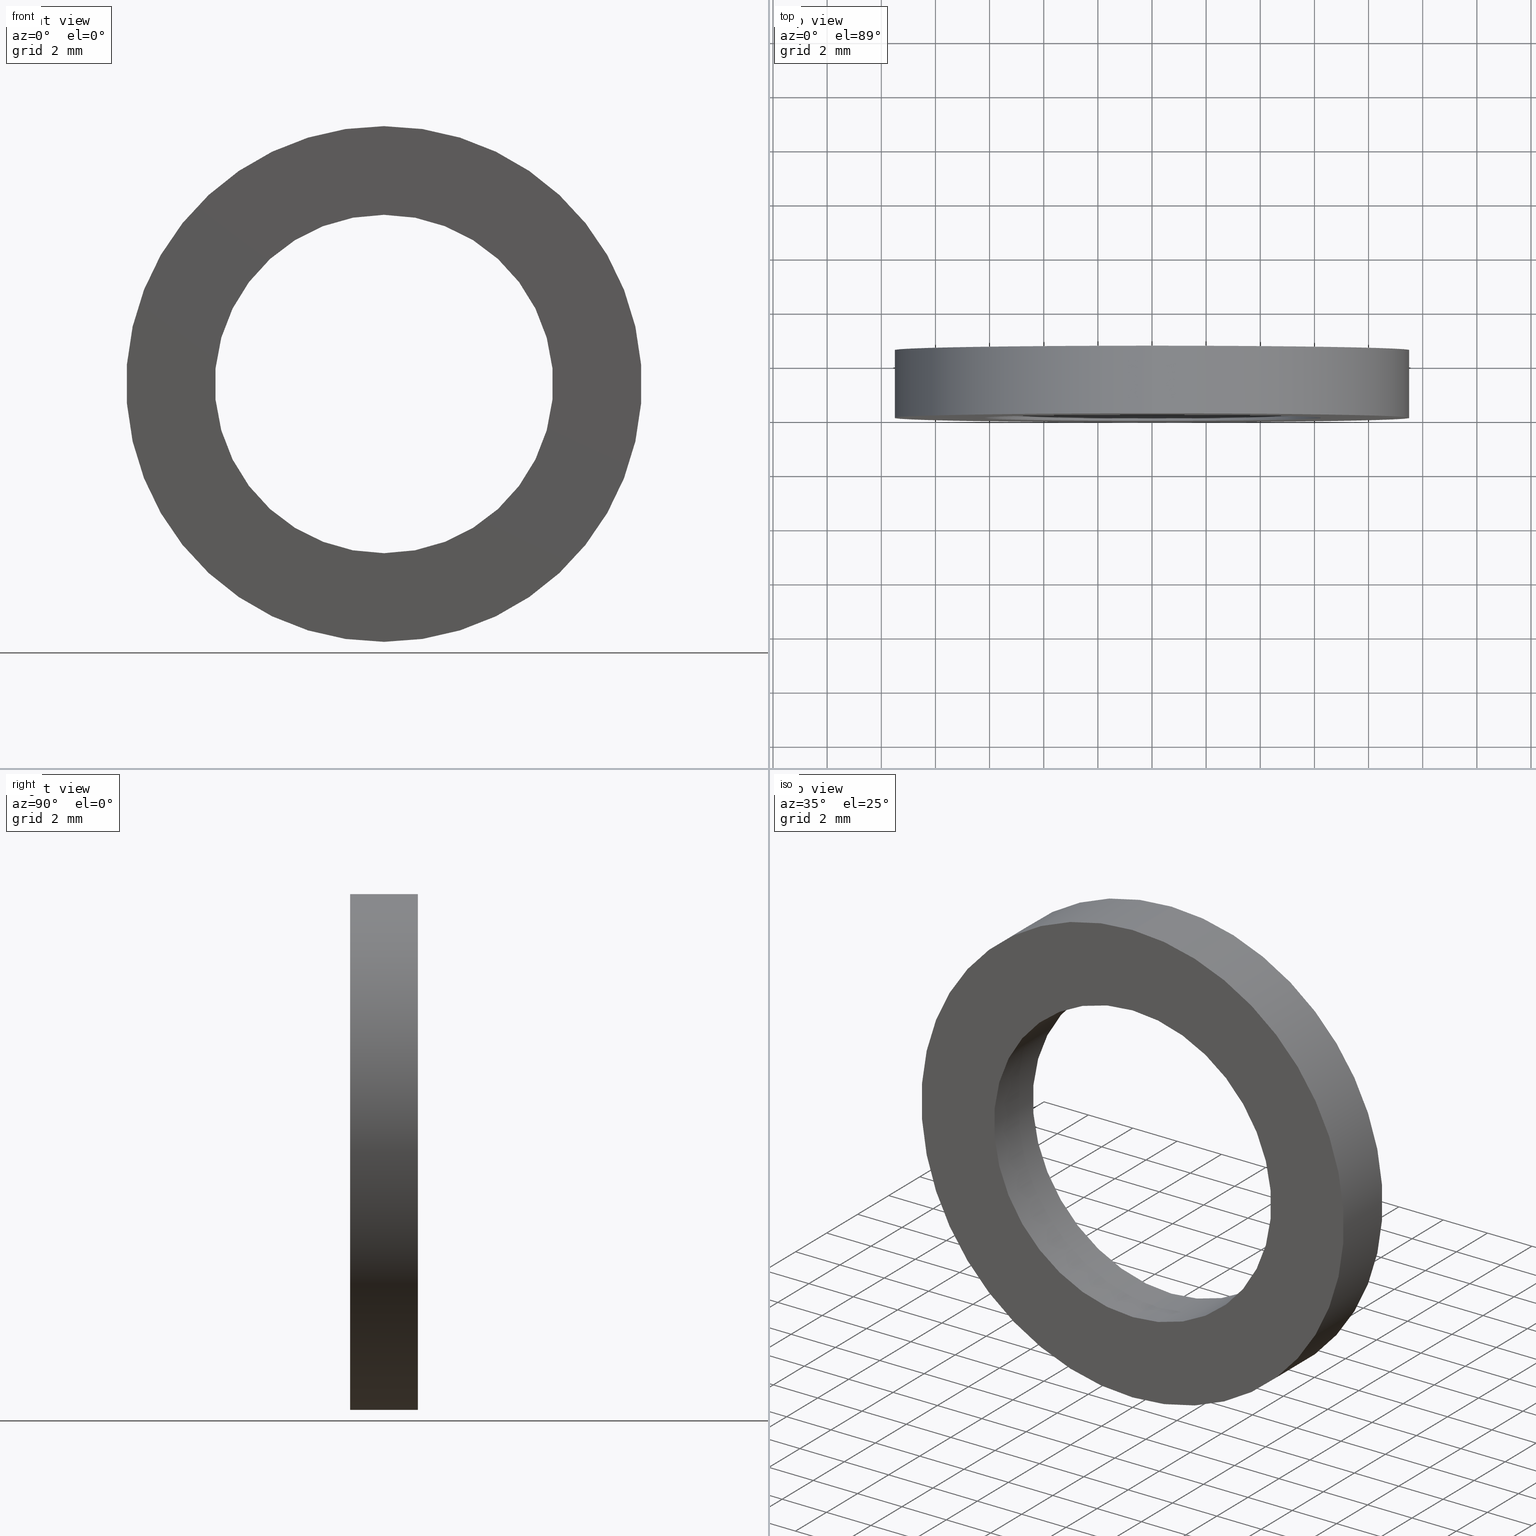
[diagram: canonical four-view strip — front | top / right | iso, engineering-drawing reading convention]
A machine part, canonical four-view strip (front | top / right | iso — engineering-drawing reading convention). The complete STEP part file that produces these views, byte-faithful:
ISO-10303-21;
HEADER;
FILE_DESCRIPTION (( 'STEP AP214' ),
    '1' );
FILE_NAME ('511006.STEP',
    '2019-09-12T08:47:17',
    ( '' ),
    ( '' ),
    'SwSTEP 2.0',
    'SolidWorks 2016',
    '' );
FILE_SCHEMA (( 'AUTOMOTIVE_DESIGN' ));
ENDSEC;

DATA;
#1 = DIRECTION ( 'NONE',  ( 0.0000000000000000000, 0.0000000000000000000, 1.000000000000000000 ) ) ;
#2 = CARTESIAN_POINT ( 'NONE',  ( 0.0000000000000000000, 77.14414226561778800, 0.0000000000000000000 ) ) ;
#3 = UNCERTAINTY_MEASURE_WITH_UNIT (LENGTH_MEASURE( 1.000000000000000100E-005 ), #81, 'distance_accuracy_value', 'NONE');
#4 = APPLICATION_PROTOCOL_DEFINITION ( 'draft international standard', 'automotive_design', 1998, #153 ) ;
#5 = DIRECTION ( 'NONE',  ( 1.000000000000000000, 0.0000000000000000000, 0.0000000000000000000 ) ) ;
#6 = DIRECTION ( 'NONE',  ( -0.0000000000000000000, 1.000000000000000000, -0.0000000000000000000 ) ) ;
#7 = CARTESIAN_POINT ( 'NONE',  ( 1.166476076187855000E-015, 2.500000000000002200, -9.525000000000009200 ) ) ;
#8 = DIRECTION ( 'NONE',  ( 0.0000000000000000000, 0.0000000000000000000, 1.000000000000000000 ) ) ;
#9 = VERTEX_POINT ( 'NONE', #234 ) ;
#10 = CIRCLE ( 'NONE', #111, 9.525000000000009200 ) ;
#11 = AXIS2_PLACEMENT_3D ( 'NONE', #119, #29, #43 ) ;
#12 = VERTEX_POINT ( 'NONE', #137 ) ;
#13 = CARTESIAN_POINT ( 'NONE',  ( 0.0000000000000000000, 77.14414226561778800, 6.250000000000008900 ) ) ;
#14 = DIRECTION ( 'NONE',  ( 0.0000000000000000000, 0.0000000000000000000, 1.000000000000000000 ) ) ;
#15 =( NAMED_UNIT ( * ) PLANE_ANGLE_UNIT ( ) SI_UNIT ( $, .RADIAN. ) );
#16 = ORIENTED_EDGE ( 'NONE', *, *, #122, .F. ) ;
#17 = DIRECTION ( 'NONE',  ( -0.0000000000000000000, 1.000000000000000000, 0.0000000000000000000 ) ) ;
#18 = DIRECTION ( 'NONE',  ( -0.0000000000000000000, 1.000000000000000000, -0.0000000000000000000 ) ) ;
#19 = DIRECTION ( 'NONE',  ( -0.0000000000000000000, 1.000000000000000000, -0.0000000000000000000 ) ) ;
#20 = EDGE_CURVE ( 'NONE', #207, #159, #94, .T. ) ;
#21 = ORIENTED_EDGE ( 'NONE', *, *, #229, .F. ) ;
#22 = ORIENTED_EDGE ( 'NONE', *, *, #178, .T. ) ;
#23 = SURFACE_STYLE_FILL_AREA ( #72 ) ;
#24 =( NAMED_UNIT ( * ) PLANE_ANGLE_UNIT ( ) SI_UNIT ( $, .RADIAN. ) );
#25 = CARTESIAN_POINT ( 'NONE',  ( 0.0000000000000000000, 77.14414226561778800, 0.0000000000000000000 ) ) ;
#26 = FACE_OUTER_BOUND ( 'NONE', #127, .T. ) ;
#27 = ORIENTED_EDGE ( 'NONE', *, *, #149, .F. ) ;
#28 = CIRCLE ( 'NONE', #215, 6.250000000000008900 ) ;
#29 = DIRECTION ( 'NONE',  ( -0.0000000000000000000, 1.000000000000000000, -0.0000000000000000000 ) ) ;
#30 = DIRECTION ( 'NONE',  ( 0.0000000000000000000, 0.0000000000000000000, 1.000000000000000000 ) ) ;
#31 = VERTEX_POINT ( 'NONE', #179 ) ;
#32 =( NAMED_UNIT ( * ) PLANE_ANGLE_UNIT ( ) SI_UNIT ( $, .RADIAN. ) );
#33 = CYLINDRICAL_SURFACE ( 'NONE', #37, 9.525000000000009200 ) ;
#34 = DIRECTION ( 'NONE',  ( 0.0000000000000000000, 0.0000000000000000000, 1.000000000000000000 ) ) ;
#35 = DIRECTION ( 'NONE',  ( -0.0000000000000000000, 1.000000000000000000, -0.0000000000000000000 ) ) ;
#36 = EDGE_CURVE ( 'NONE', #31, #226, #237, .T. ) ;
#37 = AXIS2_PLACEMENT_3D ( 'NONE', #83, #100, #8 ) ;
#38 = COLOUR_RGB ( '',1.000000000000000000, 1.000000000000000000, 1.000000000000000000 ) ;
#39 = LINE ( 'NONE', #13, #230 ) ;
#40 = FILL_AREA_STYLE_COLOUR ( '', #53 ) ;
#41 = AXIS2_PLACEMENT_3D ( 'NONE', #240, #17, #123 ) ;
#42 =( NAMED_UNIT ( * ) PLANE_ANGLE_UNIT ( ) SI_UNIT ( $, .RADIAN. ) );
#43 = DIRECTION ( 'NONE',  ( 0.0000000000000000000, 0.0000000000000000000, 1.000000000000000000 ) ) ;
#44 = ORIENTED_EDGE ( 'NONE', *, *, #145, .F. ) ;
#45 = ADVANCED_FACE ( 'NONE', ( #187 ), #33, .T. ) ;
#46 = PRODUCT_DEFINITION_SHAPE ( 'NONE', 'NONE',  #98 ) ;
#47 = DIRECTION ( 'NONE',  ( -0.0000000000000000000, 1.000000000000000000, -0.0000000000000000000 ) ) ;
#48 = DIRECTION ( 'NONE',  ( 0.0000000000000000000, 0.0000000000000000000, 1.000000000000000000 ) ) ;
#49 = ORIENTED_EDGE ( 'NONE', *, *, #192, .F. ) ;
#50 = CARTESIAN_POINT ( 'NONE',  ( 7.654042494670968500E-016, 0.0000000000000000000, -6.250000000000008900 ) ) ;
#51 =( NAMED_UNIT ( * ) SI_UNIT ( $, .STERADIAN. ) SOLID_ANGLE_UNIT ( ) );
#52 = PRESENTATION_LAYER_ASSIGNMENT (  '', '', ( #156 ) ) ;
#53 = COLOUR_RGB ( '',1.000000000000000000, 1.000000000000000000, 1.000000000000000000 ) ;
#54 =( GEOMETRIC_REPRESENTATION_CONTEXT ( 3 ) GLOBAL_UNCERTAINTY_ASSIGNED_CONTEXT ( ( #3 ) ) GLOBAL_UNIT_ASSIGNED_CONTEXT ( ( #81, #42, #152 ) ) REPRESENTATION_CONTEXT ( 'NONE', 'WORKASPACE' ) );
#55 = AXIS2_PLACEMENT_3D ( 'NONE', #2, #19, #34 ) ;
#56 = EDGE_LOOP ( 'NONE', ( #21, #116, #197, #124 ) ) ;
#57 = SURFACE_STYLE_FILL_AREA ( #209 ) ;
#58 = FACE_OUTER_BOUND ( 'NONE', #150, .T. ) ;
#59 = DIRECTION ( 'NONE',  ( 0.0000000000000000000, 0.0000000000000000000, 1.000000000000000000 ) ) ;
#60 = ORIENTED_EDGE ( 'NONE', *, *, #20, .T. ) ;
#61 = EDGE_CURVE ( 'NONE', #159, #226, #39, .T. ) ;
#62 = MECHANICAL_DESIGN_GEOMETRIC_PRESENTATION_REPRESENTATION (  '', ( #78 ), #225 ) ;
#63 = EDGE_LOOP ( 'NONE', ( #27, #82 ) ) ;
#64 = PRESENTATION_STYLE_ASSIGNMENT (( #242 ) ) ;
#65 = ADVANCED_FACE ( 'NONE', ( #129, #85 ), #87, .F. ) ;
#66 = ADVANCED_FACE ( 'NONE', ( #227, #113 ), #67, .F. ) ;
#67 = PLANE ( 'NONE',  #41 ) ;
#68 =( LENGTH_UNIT ( ) NAMED_UNIT ( * ) SI_UNIT ( .MILLI., .METRE. ) );
#69 = DIRECTION ( 'NONE',  ( 0.0000000000000000000, -1.000000000000000000, 0.0000000000000000000 ) ) ;
#70 = FILL_AREA_STYLE_COLOUR ( '', #162 ) ;
#71 = CIRCLE ( 'NONE', #228, 9.525000000000009200 ) ;
#72 = FILL_AREA_STYLE ('',( #70 ) ) ;
#73 = FILL_AREA_STYLE_COLOUR ( '', #208 ) ;
#74 = SURFACE_SIDE_STYLE ('',( #77 ) ) ;
#75 = SURFACE_SIDE_STYLE ('',( #57 ) ) ;
#76 = ORIENTED_EDGE ( 'NONE', *, *, #229, .T. ) ;
#77 = SURFACE_STYLE_FILL_AREA ( #216 ) ;
#78 = STYLED_ITEM ( 'NONE', ( #106 ), #198 ) ;
#79 =( NAMED_UNIT ( * ) SI_UNIT ( $, .STERADIAN. ) SOLID_ANGLE_UNIT ( ) );
#80 = CARTESIAN_POINT ( 'NONE',  ( 0.0000000000000000000, 0.0000000000000000000, 0.0000000000000000000 ) ) ;
#81 =( LENGTH_UNIT ( ) NAMED_UNIT ( * ) SI_UNIT ( .MILLI., .METRE. ) );
#82 = ORIENTED_EDGE ( 'NONE', *, *, #178, .F. ) ;
#83 = CARTESIAN_POINT ( 'NONE',  ( 0.0000000000000000000, 77.14414226561778800, 0.0000000000000000000 ) ) ;
#84 = DIRECTION ( 'NONE',  ( -0.0000000000000000000, 1.000000000000000000, -0.0000000000000000000 ) ) ;
#85 = FACE_OUTER_BOUND ( 'NONE', #172, .T. ) ;
#86 = ADVANCED_BREP_SHAPE_REPRESENTATION ( '511006', ( #134, #175 ), #54 ) ;
#87 = PLANE ( 'NONE',  #211 ) ;
#88 = SURFACE_SIDE_STYLE ('',( #23 ) ) ;
#89 = ORIENTED_EDGE ( 'NONE', *, *, #36, .F. ) ;
#90 = CYLINDRICAL_SURFACE ( 'NONE', #191, 6.250000000000008900 ) ;
#91 =( LENGTH_UNIT ( ) NAMED_UNIT ( * ) SI_UNIT ( .MILLI., .METRE. ) );
#92 = UNCERTAINTY_MEASURE_WITH_UNIT (LENGTH_MEASURE( 1.000000000000000100E-005 ), #194, 'distance_accuracy_value', 'NONE');
#93 = PRESENTATION_LAYER_ASSIGNMENT (  '', '', ( #219 ) ) ;
#94 = CIRCLE ( 'NONE', #243, 6.250000000000008900 ) ;
#95 = CIRCLE ( 'NONE', #138, 6.250000000000008900 ) ;
#96 = APPLICATION_PROTOCOL_DEFINITION ( 'draft international standard', 'automotive_design', 1998, #114 ) ;
#97 = EDGE_CURVE ( 'NONE', #244, #183, #10, .T. ) ;
#98 = PRODUCT_DEFINITION ( 'δ֪', '', #135, #200 ) ;
#99 = ORIENTED_EDGE ( 'NONE', *, *, #122, .T. ) ;
#100 = DIRECTION ( 'NONE',  ( -0.0000000000000000000, 1.000000000000000000, -0.0000000000000000000 ) ) ;
#101 = PRESENTATION_LAYER_ASSIGNMENT (  '', '', ( #125 ) ) ;
#102 = ORIENTED_EDGE ( 'NONE', *, *, #97, .F. ) ;
#103 = DIRECTION ( 'NONE',  ( 0.0000000000000000000, -0.0000000000000000000, -1.000000000000000000 ) ) ;
#104 = CARTESIAN_POINT ( 'NONE',  ( 0.0000000000000000000, 2.500000000000002200, 6.250000000000008900 ) ) ;
#105 = ORIENTED_EDGE ( 'NONE', *, *, #20, .F. ) ;
#106 = PRESENTATION_STYLE_ASSIGNMENT (( #144 ) ) ;
#107 =( GEOMETRIC_REPRESENTATION_CONTEXT ( 3 ) GLOBAL_UNCERTAINTY_ASSIGNED_CONTEXT ( ( #92 ) ) GLOBAL_UNIT_ASSIGNED_CONTEXT ( ( #194, #24, #79 ) ) REPRESENTATION_CONTEXT ( 'NONE', 'WORKASPACE' ) );
#108 = DIRECTION ( 'NONE',  ( 0.0000000000000000000, 0.0000000000000000000, 1.000000000000000000 ) ) ;
#109 = ORIENTED_EDGE ( 'NONE', *, *, #149, .T. ) ;
#110 = UNCERTAINTY_MEASURE_WITH_UNIT (LENGTH_MEASURE( 1.000000000000000100E-005 ), #91, 'distance_accuracy_value', 'NONE');
#111 = AXIS2_PLACEMENT_3D ( 'NONE', #239, #47, #14 ) ;
#112 = ORIENTED_EDGE ( 'NONE', *, *, #192, .T. ) ;
#113 = FACE_BOUND ( 'NONE', #233, .T. ) ;
#114 = APPLICATION_CONTEXT ( 'automotive_design' ) ;
#115 = DIRECTION ( 'NONE',  ( 0.0000000000000000000, 0.0000000000000000000, 1.000000000000000000 ) ) ;
#116 = ORIENTED_EDGE ( 'NONE', *, *, #133, .F. ) ;
#117 = LINE ( 'NONE', #185, #199 ) ;
#118 = PRESENTATION_LAYER_ASSIGNMENT (  '', '', ( #78 ) ) ;
#119 = CARTESIAN_POINT ( 'NONE',  ( 0.0000000000000000000, 2.500000000000002200, 0.0000000000000000000 ) ) ;
#120 = CARTESIAN_POINT ( 'NONE',  ( 0.0000000000000000000, 2.500000000000002200, 0.0000000000000000000 ) ) ;
#121 = DIRECTION ( 'NONE',  ( -0.0000000000000000000, 1.000000000000000000, -0.0000000000000000000 ) ) ;
#122 = EDGE_CURVE ( 'NONE', #183, #244, #238, .T. ) ;
#123 = DIRECTION ( 'NONE',  ( 0.0000000000000000000, 0.0000000000000000000, 1.000000000000000000 ) ) ;
#124 = ORIENTED_EDGE ( 'NONE', *, *, #145, .T. ) ;
#125 = STYLED_ITEM ( 'NONE', ( #182 ), #86 ) ;
#126 = CARTESIAN_POINT ( 'NONE',  ( 0.0000000000000000000, 77.14414226561778800, 0.0000000000000000000 ) ) ;
#127 = EDGE_LOOP ( 'NONE', ( #109, #112, #16, #148 ) ) ;
#128 = VECTOR ( 'NONE', #231, 1000.000000000000000 ) ;
#129 = FACE_BOUND ( 'NONE', #190, .T. ) ;
#130 = CARTESIAN_POINT ( 'NONE',  ( 7.654042494670968500E-016, 77.14414226561778800, -6.250000000000008900 ) ) ;
#131 = SURFACE_STYLE_FILL_AREA ( #158 ) ;
#132 = ORIENTED_EDGE ( 'NONE', *, *, #97, .T. ) ;
#133 = EDGE_CURVE ( 'NONE', #159, #207, #95, .T. ) ;
#134 = MANIFOLD_SOLID_BREP ( '��ת1', #155 ) ;
#135 = PRODUCT_DEFINITION_FORMATION_WITH_SPECIFIED_SOURCE ( '�κ�', '', #151, .NOT_KNOWN. ) ;
#136 = ORIENTED_EDGE ( 'NONE', *, *, #167, .T. ) ;
#137 = CARTESIAN_POINT ( 'NONE',  ( 0.0000000000000000000, 0.0000000000000000000, 9.525000000000009200 ) ) ;
#138 = AXIS2_PLACEMENT_3D ( 'NONE', #214, #142, #30 ) ;
#139 = DIRECTION ( 'NONE',  ( -0.0000000000000000000, 1.000000000000000000, -0.0000000000000000000 ) ) ;
#140 = ORIENTED_EDGE ( 'NONE', *, *, #133, .T. ) ;
#141 =( NAMED_UNIT ( * ) SI_UNIT ( $, .STERADIAN. ) SOLID_ANGLE_UNIT ( ) );
#142 = DIRECTION ( 'NONE',  ( -0.0000000000000000000, 1.000000000000000000, -0.0000000000000000000 ) ) ;
#143 = CIRCLE ( 'NONE', #205, 9.525000000000009200 ) ;
#144 = SURFACE_STYLE_USAGE ( .BOTH. , #75 ) ;
#145 = EDGE_CURVE ( 'NONE', #226, #31, #28, .T. ) ;
#146 = CARTESIAN_POINT ( 'NONE',  ( 0.0000000000000000000, 77.14414226561778800, 9.525000000000009200 ) ) ;
#147 = DIRECTION ( 'NONE',  ( -0.0000000000000000000, 1.000000000000000000, -0.0000000000000000000 ) ) ;
#148 = ORIENTED_EDGE ( 'NONE', *, *, #167, .F. ) ;
#149 = EDGE_CURVE ( 'NONE', #12, #9, #143, .T. ) ;
#150 = EDGE_LOOP ( 'NONE', ( #105, #76, #193, #165 ) ) ;
#151 = PRODUCT ( '511006', '511006', '', ( #213 ) ) ;
#152 =( NAMED_UNIT ( * ) SI_UNIT ( $, .STERADIAN. ) SOLID_ANGLE_UNIT ( ) );
#153 = APPLICATION_CONTEXT ( 'automotive_design' ) ;
#154 = CYLINDRICAL_SURFACE ( 'NONE', #55, 6.250000000000008900 ) ;
#155 = CLOSED_SHELL ( 'NONE', ( #160, #236, #66, #45, #65, #198 ) ) ;
#156 = STYLED_ITEM ( 'NONE', ( #64 ), #134 ) ;
#157 = UNCERTAINTY_MEASURE_WITH_UNIT (LENGTH_MEASURE( 1.000000000000000100E-005 ), #170, 'distance_accuracy_value', 'NONE');
#158 = FILL_AREA_STYLE ('',( #40 ) ) ;
#159 = VERTEX_POINT ( 'NONE', #206 ) ;
#160 = ADVANCED_FACE ( 'NONE', ( #58 ), #90, .F. ) ;
#161 = SHAPE_DEFINITION_REPRESENTATION ( #46, #86 ) ;
#162 = COLOUR_RGB ( '',1.000000000000000000, 1.000000000000000000, 1.000000000000000000 ) ;
#163 = CARTESIAN_POINT ( 'NONE',  ( 0.0000000000000000000, 0.0000000000000000000, 0.0000000000000000000 ) ) ;
#164 = DIRECTION ( 'NONE',  ( -0.0000000000000000000, 1.000000000000000000, -0.0000000000000000000 ) ) ;
#165 = ORIENTED_EDGE ( 'NONE', *, *, #61, .F. ) ;
#166 = CARTESIAN_POINT ( 'NONE',  ( 0.0000000000000000000, 0.0000000000000000000, 0.0000000000000000000 ) ) ;
#167 = EDGE_CURVE ( 'NONE', #12, #183, #176, .T. ) ;
#168 = CARTESIAN_POINT ( 'NONE',  ( 0.0000000000000000000, 2.500000000000002200, 9.525000000000009200 ) ) ;
#169 = SURFACE_STYLE_USAGE ( .BOTH. , #74 ) ;
#170 =( LENGTH_UNIT ( ) NAMED_UNIT ( * ) SI_UNIT ( .MILLI., .METRE. ) );
#171 = MECHANICAL_DESIGN_GEOMETRIC_PRESENTATION_REPRESENTATION (  '', ( #156 ), #181 ) ;
#172 = EDGE_LOOP ( 'NONE', ( #99, #132 ) ) ;
#173 = VECTOR ( 'NONE', #147, 1000.000000000000000 ) ;
#174 = SURFACE_SIDE_STYLE ('',( #131 ) ) ;
#175 = AXIS2_PLACEMENT_3D ( 'NONE', #80, #115, #5 ) ;
#176 = LINE ( 'NONE', #146, #173 ) ;
#177 = DIRECTION ( 'NONE',  ( 0.0000000000000000000, 0.0000000000000000000, 1.000000000000000000 ) ) ;
#178 = EDGE_CURVE ( 'NONE', #9, #12, #71, .T. ) ;
#179 = CARTESIAN_POINT ( 'NONE',  ( 7.654042494670968500E-016, 2.500000000000002200, -6.250000000000008900 ) ) ;
#180 = FACE_OUTER_BOUND ( 'NONE', #56, .T. ) ;
#181 =( GEOMETRIC_REPRESENTATION_CONTEXT ( 3 ) GLOBAL_UNCERTAINTY_ASSIGNED_CONTEXT ( ( #204 ) ) GLOBAL_UNIT_ASSIGNED_CONTEXT ( ( #68, #15, #141 ) ) REPRESENTATION_CONTEXT ( 'NONE', 'WORKASPACE' ) );
#182 = PRESENTATION_STYLE_ASSIGNMENT (( #232 ) ) ;
#183 = VERTEX_POINT ( 'NONE', #168 ) ;
#184 = DIRECTION ( 'NONE',  ( 0.0000000000000000000, 0.0000000000000000000, 1.000000000000000000 ) ) ;
#185 = CARTESIAN_POINT ( 'NONE',  ( 1.166476076187855000E-015, 77.14414226561778800, -9.525000000000009200 ) ) ;
#186 = CYLINDRICAL_SURFACE ( 'NONE', #223, 9.525000000000009200 ) ;
#187 = FACE_OUTER_BOUND ( 'NONE', #212, .T. ) ;
#188 = CARTESIAN_POINT ( 'NONE',  ( 0.0000000000000000000, 0.0000000000000000000, 0.0000000000000000000 ) ) ;
#189 = DIRECTION ( 'NONE',  ( -0.0000000000000000000, 1.000000000000000000, -0.0000000000000000000 ) ) ;
#190 = EDGE_LOOP ( 'NONE', ( #44, #89 ) ) ;
#191 = AXIS2_PLACEMENT_3D ( 'NONE', #126, #189, #220 ) ;
#192 = EDGE_CURVE ( 'NONE', #9, #244, #117, .T. ) ;
#193 = ORIENTED_EDGE ( 'NONE', *, *, #36, .T. ) ;
#194 =( LENGTH_UNIT ( ) NAMED_UNIT ( * ) SI_UNIT ( .MILLI., .METRE. ) );
#195 = AXIS2_PLACEMENT_3D ( 'NONE', #202, #164, #184 ) ;
#196 = PRODUCT_RELATED_PRODUCT_CATEGORY ( 'part', '', ( #151 ) ) ;
#197 = ORIENTED_EDGE ( 'NONE', *, *, #61, .T. ) ;
#198 = ADVANCED_FACE ( 'NONE', ( #180 ), #154, .F. ) ;
#199 = VECTOR ( 'NONE', #18, 1000.000000000000000 ) ;
#200 = PRODUCT_DEFINITION_CONTEXT ( 'detailed design', #153, 'design' ) ;
#201 = MECHANICAL_DESIGN_GEOMETRIC_PRESENTATION_REPRESENTATION (  '', ( #125 ), #107 ) ;
#202 = CARTESIAN_POINT ( 'NONE',  ( 0.0000000000000000000, 2.500000000000002200, 0.0000000000000000000 ) ) ;
#203 = FILL_AREA_STYLE_COLOUR ( '', #38 ) ;
#204 = UNCERTAINTY_MEASURE_WITH_UNIT (LENGTH_MEASURE( 1.000000000000000100E-005 ), #68, 'distance_accuracy_value', 'NONE');
#205 = AXIS2_PLACEMENT_3D ( 'NONE', #166, #121, #108 ) ;
#206 = CARTESIAN_POINT ( 'NONE',  ( 0.0000000000000000000, 0.0000000000000000000, 6.250000000000008900 ) ) ;
#207 = VERTEX_POINT ( 'NONE', #50 ) ;
#208 = COLOUR_RGB ( '',1.000000000000000000, 1.000000000000000000, 1.000000000000000000 ) ;
#209 = FILL_AREA_STYLE ('',( #73 ) ) ;
#210 = LINE ( 'NONE', #130, #128 ) ;
#211 = AXIS2_PLACEMENT_3D ( 'NONE', #218, #69, #103 ) ;
#212 = EDGE_LOOP ( 'NONE', ( #49, #22, #136, #102 ) ) ;
#213 = PRODUCT_CONTEXT ( 'NONE', #114, 'mechanical' ) ;
#214 = CARTESIAN_POINT ( 'NONE',  ( 0.0000000000000000000, 0.0000000000000000000, 0.0000000000000000000 ) ) ;
#215 = AXIS2_PLACEMENT_3D ( 'NONE', #120, #139, #48 ) ;
#216 = FILL_AREA_STYLE ('',( #203 ) ) ;
#217 = DIRECTION ( 'NONE',  ( -0.0000000000000000000, 1.000000000000000000, -0.0000000000000000000 ) ) ;
#218 = CARTESIAN_POINT ( 'NONE',  ( 6.250000000000008900, 2.500000000000000000, 0.0000000000000000000 ) ) ;
#219 = STYLED_ITEM ( 'NONE', ( #222 ), #160 ) ;
#220 = DIRECTION ( 'NONE',  ( 0.0000000000000000000, 0.0000000000000000000, 1.000000000000000000 ) ) ;
#221 =( NAMED_UNIT ( * ) SI_UNIT ( $, .STERADIAN. ) SOLID_ANGLE_UNIT ( ) );
#222 = PRESENTATION_STYLE_ASSIGNMENT (( #169 ) ) ;
#223 = AXIS2_PLACEMENT_3D ( 'NONE', #25, #6, #59 ) ;
#224 =( NAMED_UNIT ( * ) PLANE_ANGLE_UNIT ( ) SI_UNIT ( $, .RADIAN. ) );
#225 =( GEOMETRIC_REPRESENTATION_CONTEXT ( 3 ) GLOBAL_UNCERTAINTY_ASSIGNED_CONTEXT ( ( #110 ) ) GLOBAL_UNIT_ASSIGNED_CONTEXT ( ( #91, #32, #221 ) ) REPRESENTATION_CONTEXT ( 'NONE', 'WORKASPACE' ) );
#226 = VERTEX_POINT ( 'NONE', #104 ) ;
#227 = FACE_OUTER_BOUND ( 'NONE', #63, .T. ) ;
#228 = AXIS2_PLACEMENT_3D ( 'NONE', #188, #35, #1 ) ;
#229 = EDGE_CURVE ( 'NONE', #207, #31, #210, .T. ) ;
#230 = VECTOR ( 'NONE', #217, 1000.000000000000000 ) ;
#231 = DIRECTION ( 'NONE',  ( -0.0000000000000000000, 1.000000000000000000, -0.0000000000000000000 ) ) ;
#232 = SURFACE_STYLE_USAGE ( .BOTH. , #174 ) ;
#233 = EDGE_LOOP ( 'NONE', ( #140, #60 ) ) ;
#234 = CARTESIAN_POINT ( 'NONE',  ( 1.166476076187855000E-015, 0.0000000000000000000, -9.525000000000009200 ) ) ;
#235 =( GEOMETRIC_REPRESENTATION_CONTEXT ( 3 ) GLOBAL_UNCERTAINTY_ASSIGNED_CONTEXT ( ( #157 ) ) GLOBAL_UNIT_ASSIGNED_CONTEXT ( ( #170, #224, #51 ) ) REPRESENTATION_CONTEXT ( 'NONE', 'WORKASPACE' ) );
#236 = ADVANCED_FACE ( 'NONE', ( #26 ), #186, .T. ) ;
#237 = CIRCLE ( 'NONE', #11, 6.250000000000008900 ) ;
#238 = CIRCLE ( 'NONE', #195, 9.525000000000009200 ) ;
#239 = CARTESIAN_POINT ( 'NONE',  ( 0.0000000000000000000, 2.500000000000002200, 0.0000000000000000000 ) ) ;
#240 = CARTESIAN_POINT ( 'NONE',  ( 6.250000000000008900, 0.0000000000000000000, 0.0000000000000000000 ) ) ;
#241 = MECHANICAL_DESIGN_GEOMETRIC_PRESENTATION_REPRESENTATION (  '', ( #219 ), #235 ) ;
#242 = SURFACE_STYLE_USAGE ( .BOTH. , #88 ) ;
#243 = AXIS2_PLACEMENT_3D ( 'NONE', #163, #84, #177 ) ;
#244 = VERTEX_POINT ( 'NONE', #7 ) ;
ENDSEC;
END-ISO-10303-21;
